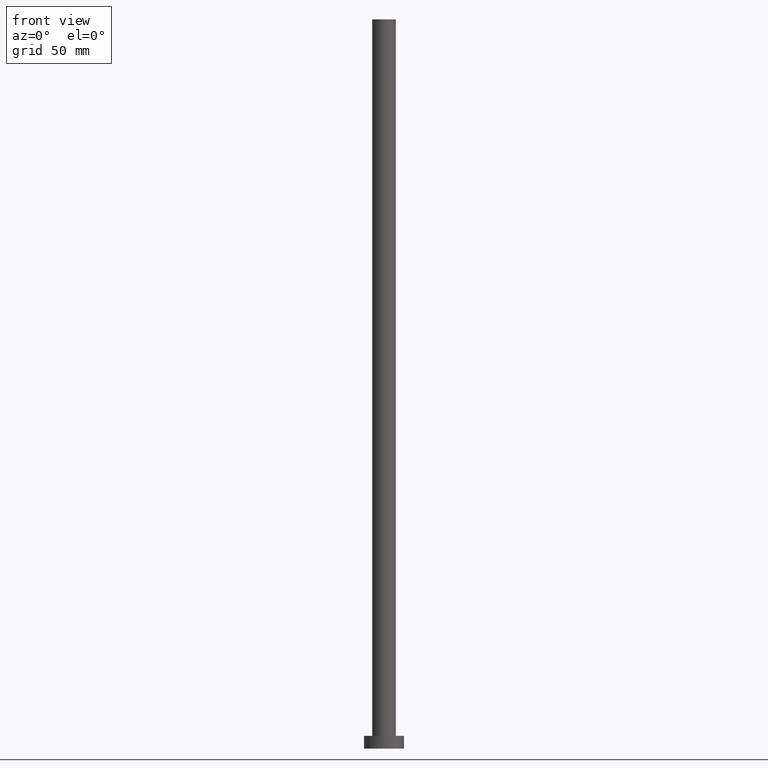
[diagram: clean part render]
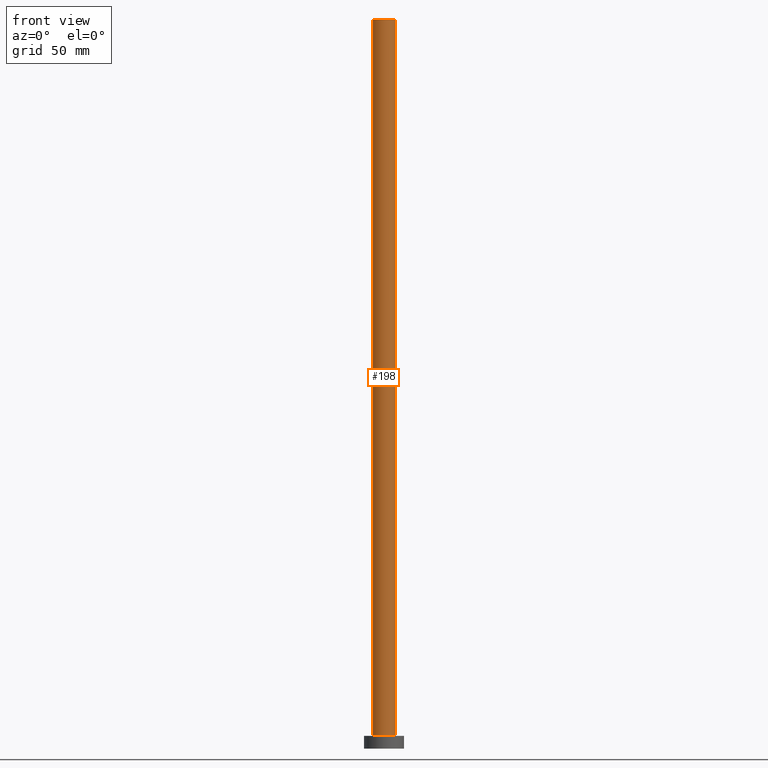
[diagram: same view with one face highlighted and labeled with its STEP entity id]
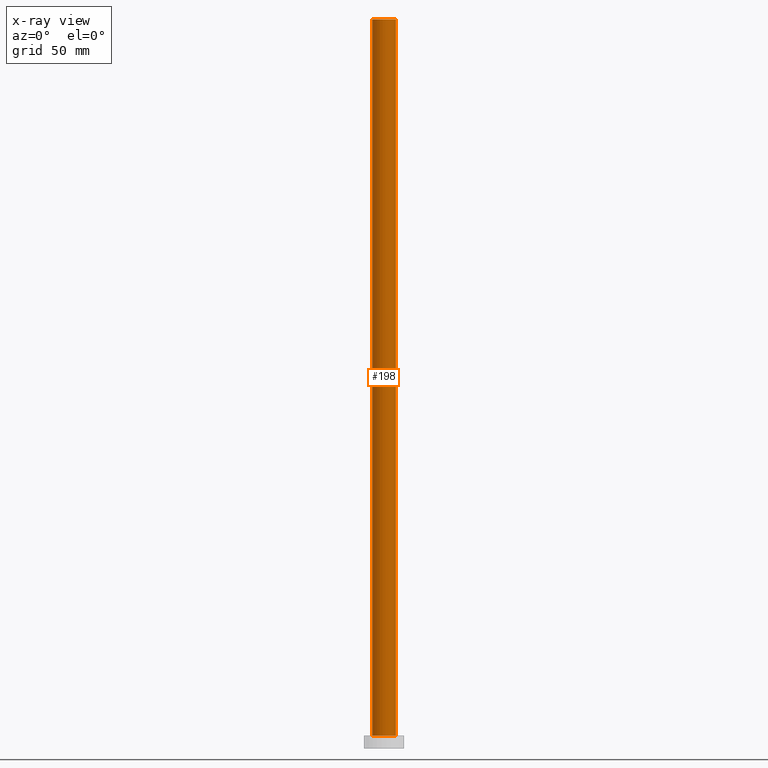
[diagram: x-ray of the same camera — body ghosted, the highlighted face saturated]
A machine part, front view. The second image highlights one B-rep face of the part: STEP entity #198.
The next image is the same camera in x-ray: the body ghosted, the highlighted face saturated — about 0% of this face is hidden behind the body in this view.
In plain terms, the highlighted cylindrical surface (edge-blend (fillet) strip) has radius 6.5 mm, axis along (-0, -0, -1).
Its self-contained STEP definition (entity closure, byte-faithful):
#4 = CYLINDRICAL_SURFACE ( 'NONE', #139, 6.500000000000000888 ) ;
#17 = LINE ( 'NONE', #227, #35 ) ;
#21 = CARTESIAN_POINT ( 'NONE',  ( 6.500000000000000888, 7.960204194457796463E-16, 400.0000000000000000 ) ) ;
#23 = CARTESIAN_POINT ( 'NONE',  ( -6.500000000000000888, 0.000000000000000000, 400.0000000000000000 ) ) ;
#27 = DIRECTION ( 'NONE',  ( -1.000000000000000000, 0.000000000000000000, 0.000000000000000000 ) ) ;
#35 = VECTOR ( 'NONE', #205, 1000.000000000000000 ) ;
#37 = EDGE_LOOP ( 'NONE', ( #126, #234, #247, #143 ) ) ;
#40 = EDGE_CURVE ( 'NONE', #47, #241, #146, .T. ) ;
#45 = DIRECTION ( 'NONE',  ( -0.000000000000000000, -0.000000000000000000, -1.000000000000000000 ) ) ;
#47 = VERTEX_POINT ( 'NONE', #23 ) ;
#48 = VERTEX_POINT ( 'NONE', #193 ) ;
#55 = DIRECTION ( 'NONE',  ( -0.000000000000000000, -0.000000000000000000, -1.000000000000000000 ) ) ;
#80 = EDGE_CURVE ( 'NONE', #47, #96, #17, .T. ) ;
#84 = CARTESIAN_POINT ( 'NONE',  ( 0.000000000000000000, 0.000000000000000000, 400.0000000000000000 ) ) ;
#92 = LINE ( 'NONE', #172, #190 ) ;
#96 = VERTEX_POINT ( 'NONE', #129 ) ;
#116 = DIRECTION ( 'NONE',  ( 1.000000000000000000, 0.000000000000000000, 0.000000000000000000 ) ) ;
#119 = AXIS2_PLACEMENT_3D ( 'NONE', #211, #249, #214 ) ;
#122 = AXIS2_PLACEMENT_3D ( 'NONE', #150, #228, #116 ) ;
#126 = ORIENTED_EDGE ( 'NONE', *, *, #165, .F. ) ;
#129 = CARTESIAN_POINT ( 'NONE',  ( -6.500000000000000888, 0.000000000000000000, 7.000000000000000000 ) ) ;
#139 = AXIS2_PLACEMENT_3D ( 'NONE', #84, #45, #27 ) ;
#143 = ORIENTED_EDGE ( 'NONE', *, *, #170, .T. ) ;
#146 = CIRCLE ( 'NONE', #122, 6.500000000000000888 ) ;
#150 = CARTESIAN_POINT ( 'NONE',  ( 0.000000000000000000, 0.000000000000000000, 400.0000000000000000 ) ) ;
#165 = EDGE_CURVE ( 'NONE', #241, #48, #92, .T. ) ;
#170 = EDGE_CURVE ( 'NONE', #96, #48, #197, .T. ) ;
#172 = CARTESIAN_POINT ( 'NONE',  ( 6.500000000000000888, 7.960204194457796463E-16, 400.0000000000000000 ) ) ;
#190 = VECTOR ( 'NONE', #55, 1000.000000000000000 ) ;
#193 = CARTESIAN_POINT ( 'NONE',  ( 6.500000000000000888, 7.960204194457796463E-16, 7.000000000000000000 ) ) ;
#197 = CIRCLE ( 'NONE', #119, 6.500000000000000888 ) ;
#198 = ADVANCED_FACE ( 'NONE', ( #201 ), #4, .T. ) ;
#201 = FACE_OUTER_BOUND ( 'NONE', #37, .T. ) ;
#205 = DIRECTION ( 'NONE',  ( -0.000000000000000000, -0.000000000000000000, -1.000000000000000000 ) ) ;
#211 = CARTESIAN_POINT ( 'NONE',  ( 0.000000000000000000, 0.000000000000000000, 7.000000000000000000 ) ) ;
#214 = DIRECTION ( 'NONE',  ( 1.000000000000000000, 0.000000000000000000, 0.000000000000000000 ) ) ;
#227 = CARTESIAN_POINT ( 'NONE',  ( -6.500000000000000888, 0.000000000000000000, 400.0000000000000000 ) ) ;
#228 = DIRECTION ( 'NONE',  ( 0.000000000000000000, 0.000000000000000000, 1.000000000000000000 ) ) ;
#234 = ORIENTED_EDGE ( 'NONE', *, *, #40, .F. ) ;
#241 = VERTEX_POINT ( 'NONE', #21 ) ;
#247 = ORIENTED_EDGE ( 'NONE', *, *, #80, .T. ) ;
#249 = DIRECTION ( 'NONE',  ( 0.000000000000000000, 0.000000000000000000, 1.000000000000000000 ) ) ;